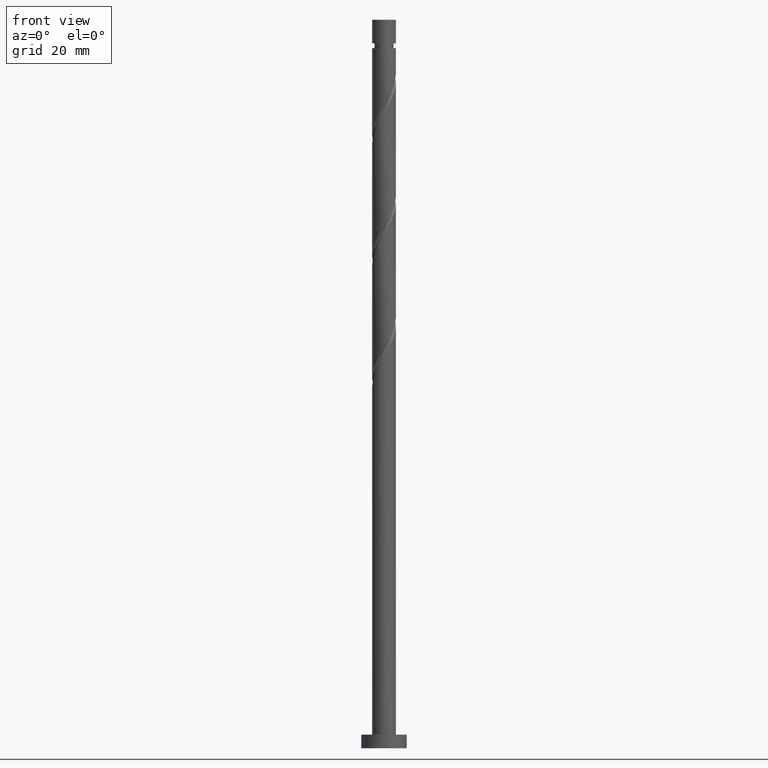
[diagram: clean part render]
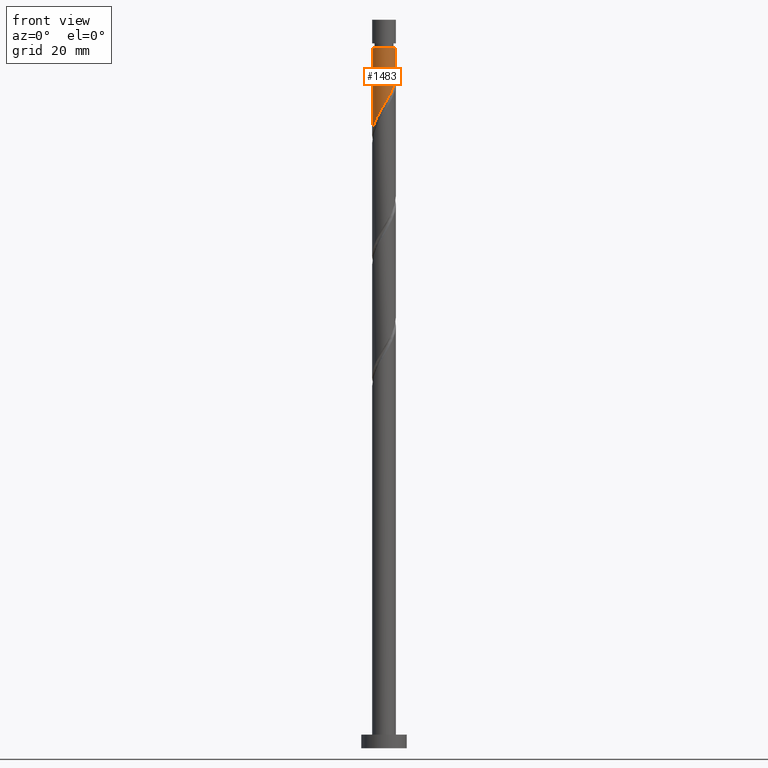
[diagram: same view with one face highlighted and labeled with its STEP entity id]
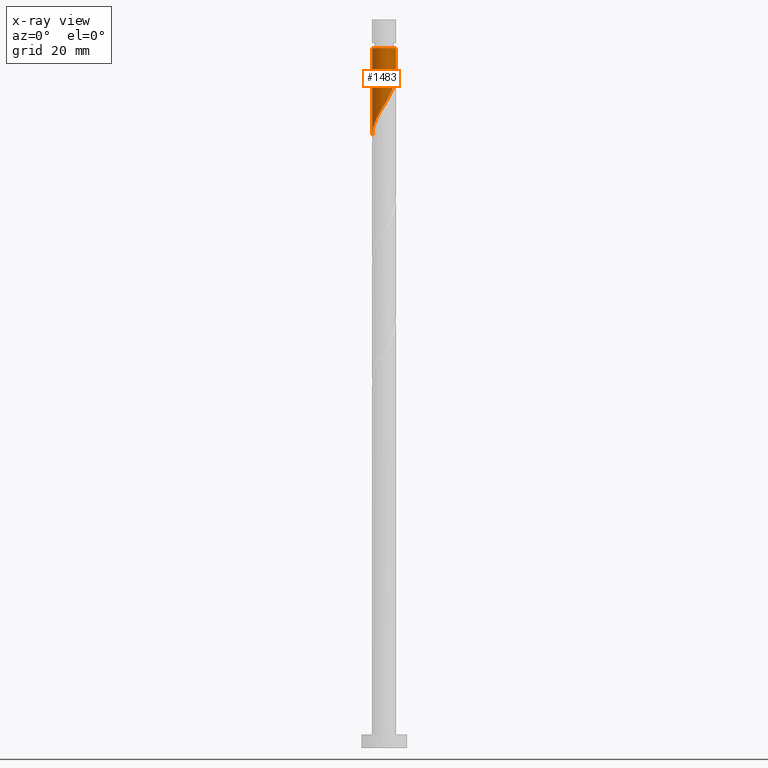
[diagram: x-ray of the same camera — body ghosted, the highlighted face saturated]
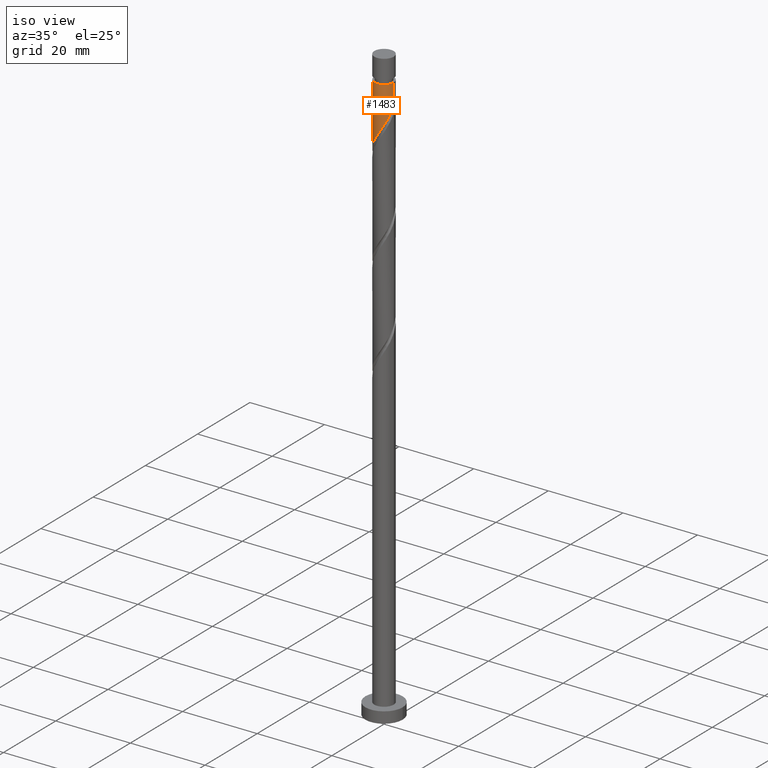
[diagram: same view with one face highlighted and labeled with its STEP entity id]
A machine part, front view. The second image highlights one B-rep face of the part: STEP entity #1483.
The next image is the same camera in x-ray: the body ghosted, the highlighted face saturated — about 0% of this face is hidden behind the body in this view.
A second angle (iso view) of the same face is appended — the face is thin or edge-on in the first view.
In plain terms, the highlighted cylindrical surface (edge-blend (fillet) strip) has radius 2.6 mm, axis along (-0, -0, -1).
Its self-contained STEP definition (entity closure, byte-faithful):
#33 = CARTESIAN_POINT ( 'NONE',  ( -2.600000000000000089, 7.732676303707661966E-15, 134.6160129578344424 ) ) ;
#43 = CYLINDRICAL_SURFACE ( 'NONE', #714, 2.600000000000000089 ) ;
#58 = EDGE_CURVE ( 'NONE', #1047, #1583, #1577, .T. ) ;
#103 = CARTESIAN_POINT ( 'NONE',  ( -0.5173934672954447755, -2.548000000000000043, 140.4332251452001969 ) ) ;
#186 = VECTOR ( 'NONE', #955, 1000.000000000000000 ) ;
#204 = CARTESIAN_POINT ( 'NONE',  ( 0.9422937206507956409, -2.423238028758644802, 142.8574675694426617 ) ) ;
#272 = CARTESIAN_POINT ( 'NONE',  ( 2.595697801534421423, -0.1495089398978222128, 147.7059524179274206 ) ) ;
#305 = CARTESIAN_POINT ( 'NONE',  ( 2.599999999999993872, 3.184081677783114246E-16, 153.7665584785335398 ) ) ;
#326 = CARTESIAN_POINT ( 'NONE',  ( 1.882955749076662855, -1.831453440388286724, 144.6756493876244178 ) ) ;
#346 = ORIENTED_EDGE ( 'NONE', *, *, #58, .T. ) ;
#359 = DIRECTION ( 'NONE',  ( -0.000000000000000000, -0.000000000000000000, -1.000000000000000000 ) ) ;
#396 = CARTESIAN_POINT ( 'NONE',  ( -2.600000000000000089, 0.000000000000000000, 160.0000000000000000 ) ) ;
#401 = CARTESIAN_POINT ( 'NONE',  ( 2.599999999999999645, -1.032020628541254822E-15, 147.9493462911677568 ) ) ;
#457 = LINE ( 'NONE', #823, #186 ) ;
#469 = CARTESIAN_POINT ( 'NONE',  ( -1.214289951295983716, -2.299021512335540418, 139.2211039330790356 ) ) ;
#510 = CARTESIAN_POINT ( 'NONE',  ( 2.322662871362705328, -1.226776769948020984, 145.8877705997456928 ) ) ;
#513 = ORIENTED_EDGE ( 'NONE', *, *, #1519, .F. ) ;
#518 = CARTESIAN_POINT ( 'NONE',  ( 2.102809310219684313, -1.529115105168154187, 145.2817099936850695 ) ) ;
#538 = CARTESIAN_POINT ( 'NONE',  ( -2.264470581186239340, -1.277565257410379962, 136.7968615088365425 ) ) ;
#557 = CARTESIAN_POINT ( 'NONE',  ( 0.000000000000000000, 0.000000000000000000, 160.0000000000000000 ) ) ;
#562 = EDGE_LOOP ( 'NONE', ( #1330, #346, #915, #513 ) ) ;
#622 = CARTESIAN_POINT ( 'NONE',  ( 0.000000000000000000, 0.000000000000000000, 153.7665584785335398 ) ) ;
#708 = CARTESIAN_POINT ( 'NONE',  ( 1.586829249723058943, -2.059605042774792949, 144.0695887815638798 ) ) ;
#714 = AXIS2_PLACEMENT_3D ( 'NONE', #557, #1560, #1425 ) ;
#756 = CARTESIAN_POINT ( 'NONE',  ( -2.532675338106940455, -0.5878398010894585468, 135.5847402967153812 ) ) ;
#821 = VERTEX_POINT ( 'NONE', #33 ) ;
#823 = CARTESIAN_POINT ( 'NONE',  ( 2.600000000000000089, 3.184081677783118191E-16, 160.0000000000000000 ) ) ;
#853 = CARTESIAN_POINT ( 'NONE',  ( -2.080784428008527254, -1.603146974375142975, 137.4029221148972226 ) ) ;
#861 = CARTESIAN_POINT ( 'NONE',  ( 0.5938846909321360279, -2.558719412355991096, 142.2514069633820100 ) ) ;
#888 = CARTESIAN_POINT ( 'NONE',  ( 2.599999999999999645, -1.032020628541254822E-15, 147.9493462911677568 ) ) ;
#900 =( BOUNDED_CURVE ( )  B_SPLINE_CURVE ( 2, ( #401, #908, #272, #1040, #1553, #510, #518, #326, #708, #1221, #204, #861, #1646, #1230, #103, #1103, #469, #1239, #1507, #853, #538, #1569, #756, #1272, #917 ),
 .UNSPECIFIED., .F., .T. ) 
 B_SPLINE_CURVE_WITH_KNOTS ( ( 3, 2, 2, 2, 2, 2, 2, 2, 2, 2, 2, 2, 3 ),
 ( 0.3045252162417509956, 0.3068181818181818232, 0.3181818181818181768, 0.3295454545454545303, 0.3409090909090908839, 0.3522727272727272929, 0.3636363636363636465, 0.3750000000000000000, 0.3863636363636363535, 0.3977272727272727071, 0.4090909090909091161, 0.4204545454545454697, 0.4295252162417512176 ),
 .UNSPECIFIED. ) 
 CURVE ( )  GEOMETRIC_REPRESENTATION_ITEM ( )  RATIONAL_B_SPLINE_CURVE ( ( 0.9061101570135581262, 0.9072237824201403456, 0.9090909090909180534, 0.8998376744372204028, 0.9090909090909180534, 0.8998376744372204028, 0.9090909090909180534, 0.8998376744372204028, 0.9090909090909180534, 0.8998376744372204028, 0.9090909090909180534, 0.8998376744372204028, 0.9090909090909180534, 0.8998376744372204028, 0.9090909090909180534, 0.8998376744372204028, 0.9090909090909180534, 0.8998376744372204028, 0.9090909090909180534, 0.8998376744372204028, 0.9090909090909180534, 0.8998376744372204028, 0.9090909090909180534, 0.9017048011079979997, 0.9061101570135583483 ) ) 
 REPRESENTATION_ITEM ( '' )  );
#908 = CARTESIAN_POINT ( 'NONE',  ( 2.600000000000000533, -0.07481636896192922492, 147.8272482864495316 ) ) ;
#915 = ORIENTED_EDGE ( 'NONE', *, *, #1011, .T. ) ;
#917 = CARTESIAN_POINT ( 'NONE',  ( -2.600000000000000089, 7.732676303707661966E-15, 134.6160129578344424 ) ) ;
#955 = DIRECTION ( 'NONE',  ( -0.000000000000000000, -0.000000000000000000, -1.000000000000000000 ) ) ;
#981 = DIRECTION ( 'NONE',  ( -1.000000000000000000, 0.000000000000000000, 0.000000000000000000 ) ) ;
#1011 = EDGE_CURVE ( 'NONE', #1583, #821, #1163, .T. ) ;
#1031 = FACE_OUTER_BOUND ( 'NONE', #562, .T. ) ;
#1040 = CARTESIAN_POINT ( 'NONE',  ( 2.574201661218915138, -0.5227139415289437929, 147.0998918118668826 ) ) ;
#1047 = VERTEX_POINT ( 'NONE', #305 ) ;
#1100 = EDGE_CURVE ( 'NONE', #1047, #1531, #457, .T. ) ;
#1103 = CARTESIAN_POINT ( 'NONE',  ( -0.8837405603946362209, -2.473610049948115730, 139.8271645391395452 ) ) ;
#1138 = AXIS2_PLACEMENT_3D ( 'NONE', #622, #359, #981 ) ;
#1163 = LINE ( 'NONE', #396, #1389 ) ;
#1221 = CARTESIAN_POINT ( 'NONE',  ( 1.290702750369455254, -2.287756645161296731, 143.4635281755031997 ) ) ;
#1230 = CARTESIAN_POINT ( 'NONE',  ( -0.1510463741962530249, -2.622389950051882579, 141.0392857512607918 ) ) ;
#1239 = CARTESIAN_POINT ( 'NONE',  ( -1.544839342197330989, -2.124432974722964662, 138.6150433270184124 ) ) ;
#1272 = CARTESIAN_POINT ( 'NONE',  ( -2.599999999999998757, -0.2977752112013217767, 135.1019729108057277 ) ) ;
#1330 = ORIENTED_EDGE ( 'NONE', *, *, #1100, .F. ) ;
#1389 = VECTOR ( 'NONE', #1422, 1000.000000000000000 ) ;
#1422 = DIRECTION ( 'NONE',  ( -0.000000000000000000, -0.000000000000000000, -1.000000000000000000 ) ) ;
#1425 = DIRECTION ( 'NONE',  ( -1.000000000000000000, 0.000000000000000000, 0.000000000000000000 ) ) ;
#1441 = CARTESIAN_POINT ( 'NONE',  ( -2.599999999999993872, 0.000000000000000000, 153.7665584785335398 ) ) ;
#1483 = ADVANCED_FACE ( 'NONE', ( #1031 ), #43, .T. ) ;
#1507 = CARTESIAN_POINT ( 'NONE',  ( -1.812811885102929566, -1.863789974549053596, 138.0089827209577891 ) ) ;
#1519 = EDGE_CURVE ( 'NONE', #1531, #821, #900, .T. ) ;
#1531 = VERTEX_POINT ( 'NONE', #888 ) ;
#1553 = CARTESIAN_POINT ( 'NONE',  ( 2.448432266290810677, -0.8747453557384825551, 146.4938312058062593 ) ) ;
#1560 = DIRECTION ( 'NONE',  ( -0.000000000000000000, -0.000000000000000000, -1.000000000000000000 ) ) ;
#1569 = CARTESIAN_POINT ( 'NONE',  ( -2.448156734363953202, -0.9519835404456163941, 136.1908009027759761 ) ) ;
#1577 = CIRCLE ( 'NONE', #1138, 2.599999999999993872 ) ;
#1583 = VERTEX_POINT ( 'NONE', #1441 ) ;
#1646 = CARTESIAN_POINT ( 'NONE',  ( 0.2214191583679407382, -2.590554681203937282, 141.6453463573214151 ) ) ;